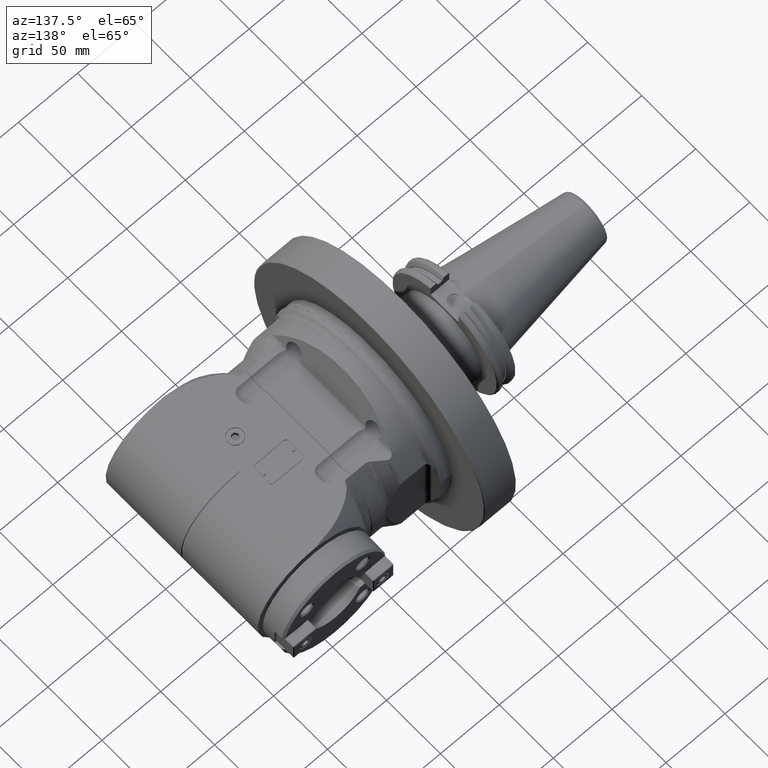
[diagram: clean part render]
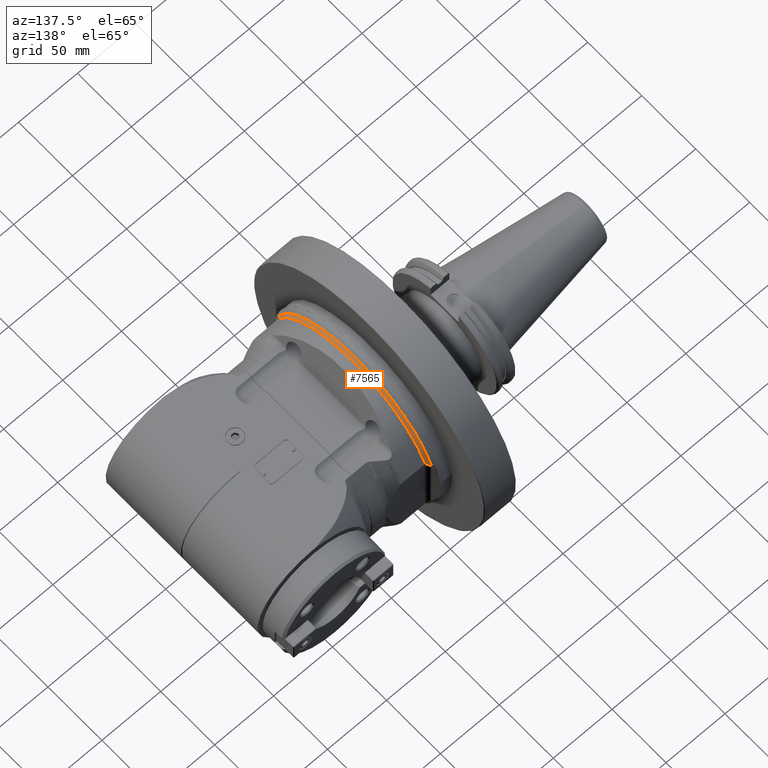
[diagram: same view with one face highlighted and labeled with its STEP entity id]
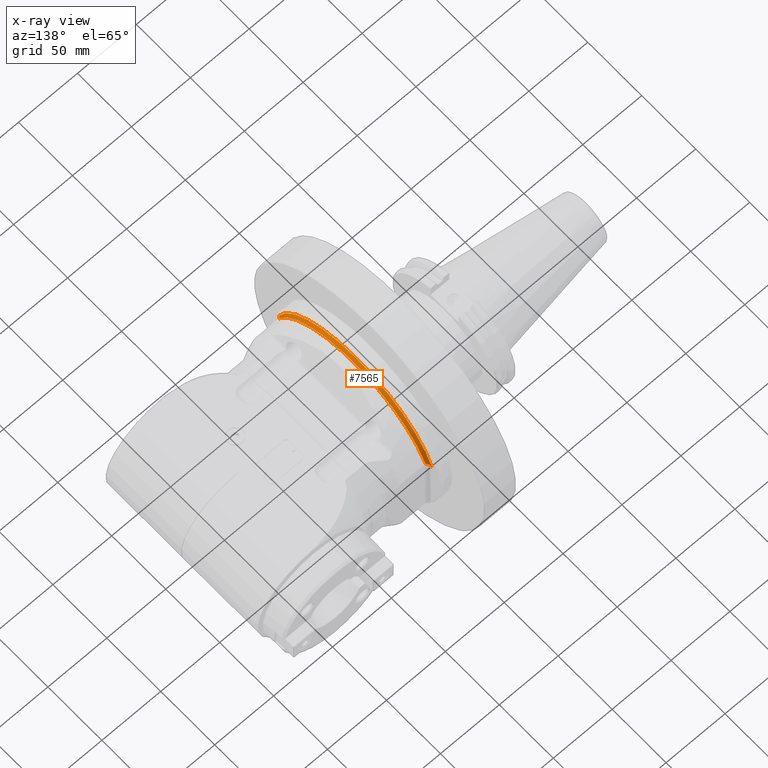
[diagram: x-ray of the same camera — body ghosted, the highlighted face saturated]
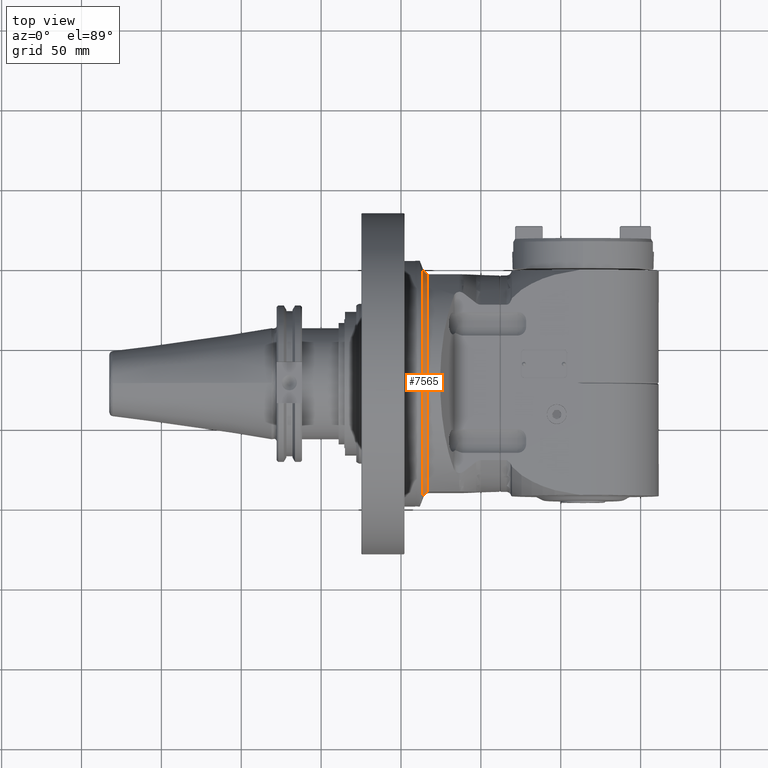
[diagram: same view with one face highlighted and labeled with its STEP entity id]
A machine part, auxiliary view. The second image highlights one B-rep face of the part: STEP entity #7565.
The next image is the same camera in x-ray: the body ghosted, the highlighted face saturated — about 0% of this face is hidden behind the body in this view.
A second angle (top view) of the same face is appended — the face is thin or edge-on in the first view.
In plain terms, the highlighted toroidal blend (fillet) surface has major radius 78 mm and minor (blend) radius 4 mm.
Its self-contained STEP definition (entity closure, byte-faithful):
#87=TOROIDAL_SURFACE('',#8374,78.,4.);
#122=B_SPLINE_CURVE_WITH_KNOTS('',3,(#12656,#12657,#12658,#12659),
 .UNSPECIFIED.,.F.,.F.,(4,4),(-3.77038062807781,-3.64696987946859),
 .UNSPECIFIED.);
#123=B_SPLINE_CURVE_WITH_KNOTS('',3,(#12662,#12663,#12664,#12665,#12666,
#12667,#12668,#12669),.UNSPECIFIED.,.F.,.F.,(4,2,2,4),(2.77453624748581,
2.93252737689261,3.11856405612919,3.21309602191214),.UNSPECIFIED.);
#129=B_SPLINE_CURVE_WITH_KNOTS('',3,(#12722,#12723,#12724,#12725),
 .UNSPECIFIED.,.F.,.F.,(4,4),(-5.11044988760891,-4.98703901612638),
 .UNSPECIFIED.);
#130=B_SPLINE_CURVE_WITH_KNOTS('',3,(#12731,#12732,#12733,#12734,#12735,
#12736,#12737,#12738,#12739,#12740),.UNSPECIFIED.,.F.,.F.,(4,2,2,2,4),(14.2501869585011,
14.2556518166118,14.4828963869152,14.7268768230122,14.8884177544303),
 .UNSPECIFIED.);
#697=FACE_OUTER_BOUND('',#1201,.T.);
#1201=EDGE_LOOP('',(#5986,#5987,#5988,#5989,#5990,#5991));
#1723=CIRCLE('',#8373,75.17157287525);
#1724=CIRCLE('',#8375,74.);
#3403=VERTEX_POINT('',#12646);
#3405=VERTEX_POINT('',#12654);
#3406=VERTEX_POINT('',#12661);
#3413=VERTEX_POINT('',#12719);
#3414=VERTEX_POINT('',#12721);
#3415=VERTEX_POINT('',#12730);
#4320=EDGE_CURVE('',#3403,#3405,#122,.T.);
#4321=EDGE_CURVE('',#3406,#3403,#123,.T.);
#4332=EDGE_CURVE('',#3414,#3413,#129,.T.);
#4334=EDGE_CURVE('',#3405,#3414,#1723,.T.);
#4335=EDGE_CURVE('',#3413,#3415,#130,.T.);
#4336=EDGE_CURVE('',#3415,#3406,#1724,.T.);
#5986=ORIENTED_EDGE('',*,*,#4334,.T.);
#5987=ORIENTED_EDGE('',*,*,#4332,.T.);
#5988=ORIENTED_EDGE('',*,*,#4335,.T.);
#5989=ORIENTED_EDGE('',*,*,#4336,.T.);
#5990=ORIENTED_EDGE('',*,*,#4321,.T.);
#5991=ORIENTED_EDGE('',*,*,#4320,.T.);
#7565=ADVANCED_FACE('',(#697),#87,.F.);
#8373=AXIS2_PLACEMENT_3D('',#12728,#10018,#10019);
#8374=AXIS2_PLACEMENT_3D('',#12729,#10020,#10021);
#8375=AXIS2_PLACEMENT_3D('',#12741,#10022,#10023);
#10018=DIRECTION('center_axis',(1.,0.,0.));
#10019=DIRECTION('ref_axis',(0.,-0.947417584812167,-0.319999874982289));
#10020=DIRECTION('center_axis',(-1.,0.,0.));
#10021=DIRECTION('ref_axis',(0.,1.,0.));
#10022=DIRECTION('center_axis',(-1.,0.,0.));
#10023=DIRECTION('ref_axis',(0.,0.921176680239488,-0.389144605234295));
#12646=CARTESIAN_POINT('',(-6.95796210898209,-70.6319739279137,-25.1411041704024));
#12654=CARTESIAN_POINT('',(-7.17157709408909,-71.2188878349674,-24.0548498398043));
#12656=CARTESIAN_POINT('Ctrl Pts',(-6.95796458314358,-70.631986060824,-25.1410706967191));
#12657=CARTESIAN_POINT('Ctrl Pts',(-7.02956498144321,-70.8287065383762,
-24.7728435887423));
#12658=CARTESIAN_POINT('Ctrl Pts',(-7.10065005999974,-71.0240111865704,
-24.4101749051586));
#12659=CARTESIAN_POINT('Ctrl Pts',(-7.17157287525419,-71.2188700200061,
-24.0548939222993));
#12661=CARTESIAN_POINT('',(-4.343145750508,-68.16707433772,-28.79670078734));
#12662=CARTESIAN_POINT('Ctrl Pts',(-4.3431457505092,-68.1670743377204,-28.7967007873419));
#12663=CARTESIAN_POINT('Ctrl Pts',(-4.81294033166052,-68.3072893399705,
-28.4647861505849));
#12664=CARTESIAN_POINT('Ctrl Pts',(-5.24607327789612,-68.5308554867716,
-28.1427016810301));
#12665=CARTESIAN_POINT('Ctrl Pts',(-6.06728337354606,-69.1564833280117,
-27.3336020742085));
#12666=CARTESIAN_POINT('Ctrl Pts',(-6.4186215264725,-69.5721174337115,-26.8418574462427));
#12667=CARTESIAN_POINT('Ctrl Pts',(-6.7999907091919,-70.239009309703,-25.8376832916235));
#12668=CARTESIAN_POINT('Ctrl Pts',(-6.89060407592533,-70.4469068826293,
-25.4875146661943));
#12669=CARTESIAN_POINT('Ctrl Pts',(-6.95795864047425,-70.6319697345221,
-25.14110125579));
#12719=CARTESIAN_POINT('',(-6.95796189813155,70.6319733565516,-25.141105225785));
#12721=CARTESIAN_POINT('',(-7.17157709871731,71.218887854466,-24.0548497916057));
#12722=CARTESIAN_POINT('Ctrl Pts',(-7.17157287525419,71.2188700199998,-24.054893922318));
#12723=CARTESIAN_POINT('Ctrl Pts',(-7.10064998938577,71.0240109925538,-24.4101752589109));
#12724=CARTESIAN_POINT('Ctrl Pts',(-7.02956483984874,70.8287061493423,-24.7728443108631));
#12725=CARTESIAN_POINT('Ctrl Pts',(-6.95796436927848,70.6319854732282,-25.1410717966039));
#12728=CARTESIAN_POINT('Origin',(-7.171572875254,0.,0.));
#12729=CARTESIAN_POINT('Origin',(-4.343145750508,0.,0.));
#12730=CARTESIAN_POINT('',(-4.343145750507,68.16707433772,-28.79670078734));
#12731=CARTESIAN_POINT('Ctrl Pts',(-6.95795843451768,70.6319691686382,-25.1411023150498));
#12732=CARTESIAN_POINT('Ctrl Pts',(-6.95442628912999,70.622264279342,-25.159268592231));
#12733=CARTESIAN_POINT('Ctrl Pts',(-6.95083874034563,70.612524108491,-25.1773986984402));
#12734=CARTESIAN_POINT('Ctrl Pts',(-6.79566041581124,70.1962694928526,-25.9478509499536));
#12735=CARTESIAN_POINT('Ctrl Pts',(-6.57495034248584,69.8129833353404,-26.4859112093129));
#12736=CARTESIAN_POINT('Ctrl Pts',(-6.02323796316066,69.1310451732908,-27.3843617036779));
#12737=CARTESIAN_POINT('Ctrl Pts',(-5.66502752854991,68.8118906711037,-27.7612247330648));
#12738=CARTESIAN_POINT('Ctrl Pts',(-4.95816094336531,68.3926279342517,-28.3550327471493));
#12739=CARTESIAN_POINT('Ctrl Pts',(-4.65687381713826,68.2607096909864,-28.5750487260916));
#12740=CARTESIAN_POINT('Ctrl Pts',(-4.34314575050774,68.1670743377207,-28.7967007873413));
#12741=CARTESIAN_POINT('Origin',(-4.343145750508,0.,0.));